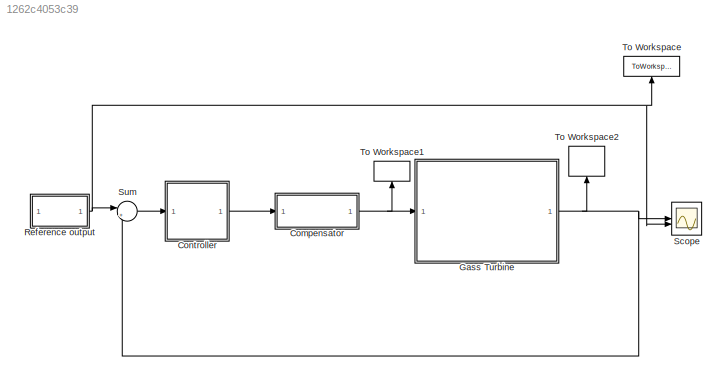
MODEL slx_1262c4053c39
KIND model
CONFIG AbsTol = auto
CONFIG EnableMultiTasking = off
CONFIG FixedStep = auto
CONFIG InitFcn = clc;\nclose all;\nclear;\ns=tf('s');\nG11=(0.806*s+0.264)/(s^2+1.15*s+0.202);\nG12=-(15*s+1.42)/(s^3+12.8*s^2+13.6*s+2.36);\nG21=(1.95*s^2+2.12*s+0.49)/(s^3+9.15*s^2+9.39*s+1.62);\nG22=(7.14*s^2+25.8*s+9.35)/(s^4+20.8*s^3+116.4*s^2+111.6*s+18.8);\nG=[G11,G12;G21,G22];\na11=[1 1.15 0.202];\na12=[1 12.8 13.6 2.36];\na21=[1 9.15 9.39 1.62];\na22=[1 20.8 116.4 111.6 18.8];\nb11=[0.806 0.264];\nb12=-[15 1.42];\nb21=[...<+381ch>
CONFIG MaxStep = auto
CONFIG MinStep = auto
CONFIG RelTol = 1e-3
CONFIG SampleTimeConstraint = Unconstrained
CONFIG SolverName = VariableStepAuto
CONFIG StartTime = 0.0
CONFIG StopFcn = close all;\nsubplot(1,2,1)\nplot(out.tout,out.y_ref.data(:,1),'-.','LineWidth',3.5)\nhold on\nplot(out.tout,out.y.data(:,1),'LineWidth',2.5)\nxlabel('time')\nylabel('y_1')\ngrid\nsubplot(1,2,2)\nplot(out.tout,out.y_ref.data(:,2),'-.','LineWidth',3.5)\nhold on\nplot(out.tout,out.y.data(:,2),'LineWidth',2.5)\nxlabel('time')\nylabel('y_2')\ngrid\nsgtitle('System response')\n\nfigure()\nsubplot(1,2,1)\nplot(out.tout,out...<+185ch>
CONFIG StopTime = 150
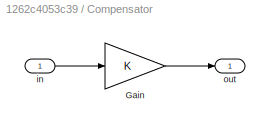
BLOCK [SubSystem] Compensator
BLOCK [Gain] Compensator/Gain
  Gain = K
  Multiplication = Matrix(K*u) (u vector)
BLOCK [Inport] Compensator/in
BLOCK [Outport] Compensator/out
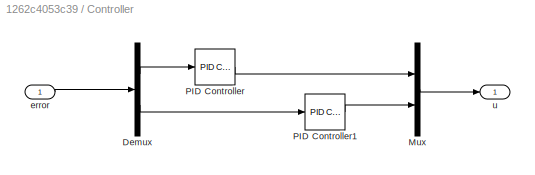
BLOCK [SubSystem] Controller
BLOCK [Demux] Controller/Demux
  Outputs = 2
BLOCK [Mux] Controller/Mux
  DisplayOption = bar
  Inputs = 2
BLOCK [Reference] Controller/PID Controller  REF=slpidlib/PID Controller
  SourceBlock = slpidlib/PID Controller
  SourceType = PID 1dof
BLOCK [Reference] Controller/PID Controller1  REF=slpidlib/PID Controller
  SourceBlock = slpidlib/PID Controller
  SourceType = PID 1dof
BLOCK [Inport] Controller/error
BLOCK [Outport] Controller/u
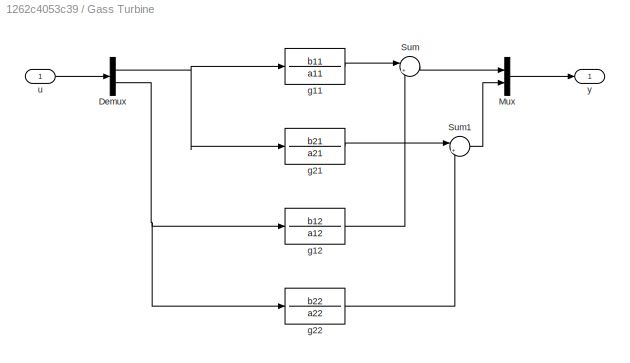
BLOCK [SubSystem] Gass Turbine
BLOCK [Demux] Gass Turbine/Demux
  Outputs = 2
BLOCK [Mux] Gass Turbine/Mux
  DisplayOption = bar
  Inputs = 2
BLOCK [Sum] Gass Turbine/Sum
  Inputs = |++
BLOCK [Sum] Gass Turbine/Sum1
  Inputs = |++
BLOCK [TransferFcn] Gass Turbine/g11
  Denominator = a11
  Numerator = b11
BLOCK [TransferFcn] Gass Turbine/g12
  Denominator = a12
  Numerator = b12
BLOCK [TransferFcn] Gass Turbine/g21
  Denominator = a21
  Numerator = b21
BLOCK [TransferFcn] Gass Turbine/g22
  Denominator = a22
  Numerator = b22
BLOCK [Inport] Gass Turbine/u
BLOCK [Outport] Gass Turbine/y
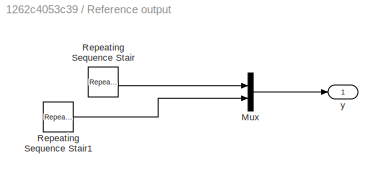
BLOCK [SubSystem] Reference output
BLOCK [Mux] Reference output/Mux
  DisplayOption = bar
  Inputs = 2
BLOCK [Reference] Reference output/Repeating Sequence Stair  REF=simulink/Sources/Repeating
Sequence
Stair
  SourceBlock = simulink/Sources/Repeating\nSequence\nStair
  SourceType = Repeating Sequence Stair
BLOCK [Reference] Reference output/Repeating Sequence Stair1  REF=simulink/Sources/Repeating
Sequence
Stair
  SourceBlock = simulink/Sources/Repeating\nSequence\nStair
  SourceType = Repeating Sequence Stair
BLOCK [Outport] Reference output/y
BLOCK [Scope] Scope
  ActiveDisplayYMaximum = 1.55201
  ActiveDisplayYMinimum = -0.55203
  Floating = off
  GraphicalSettings = {"GraphicalSettings":{"LegacySettings":true,"Style":{"AxesScalingProperties":{"ScaleAxesLimitsAtStop":false},"Style":{"AxesColor":"[0 0 0]","ChannelNames":[""],"ColorOrder":"[1 1 0.0666666666666667;0.0745098039215686 0.623529411764706 1;1 0.411764705882353 0.16078431372549;0.392156862745098 0.831372549019608 0.0745098039215686;0.717647058823529 0.274509803921569 1;0.0588235294117647 1 1;1 0.074509...<+464ch>
  MultipleDisplayCache = [{"MaxYLimMag":1.55201,"MaxYLimReal":1.55201,"MinYLimMag":0,"MinYLimReal":-0.55203,"PlotAsMagnitudePhase":false,"ShowGrid":true,"ShowLegend":false,"Title":"%<SignalLabel>","YLabel":""}]
  NumInputPorts = 2
  WasSavedAsWebScope = on
BLOCK [Sum] Sum
  Inputs = |+-
BLOCK [ToWorkspace] To Workspace
  FixptAsFi = on
  MaxDataPoints = inf
  NameLocation = right
  SampleTime = -1
  SaveFormat = Timeseries
  VariableName = y_ref
BLOCK [ToWorkspace] To Workspace1
  FixptAsFi = on
  MaxDataPoints = inf
  NameLocation = right
  SampleTime = -1
  SaveFormat = Timeseries
  VariableName = u
BLOCK [ToWorkspace] To Workspace2
  FixptAsFi = on
  MaxDataPoints = inf
  NameLocation = right
  SampleTime = -1
  SaveFormat = Timeseries
  VariableName = y
LINE Compensator/Gain:1 -> Compensator/out:1
LINE Compensator/in:1 -> Compensator/Gain:1
NET Compensator:1 -> Gass Turbine:1, To Workspace1:1
LINE Controller/Demux:1 -> Controller/PID Controller:1
LINE Controller/Demux:2 -> Controller/PID Controller1:1
LINE Controller/Mux:1 -> Controller/u:1
LINE Controller/PID Controller1:1 -> Controller/Mux:2
LINE Controller/PID Controller:1 -> Controller/Mux:1
LINE Controller/error:1 -> Controller/Demux:1
LINE Controller:1 -> Compensator:1
NET Gass Turbine/Demux:1 -> Gass Turbine/g11:1, Gass Turbine/g21:1
NET Gass Turbine/Demux:2 -> Gass Turbine/g12:1, Gass Turbine/g22:1
LINE Gass Turbine/Mux:1 -> Gass Turbine/y:1
LINE Gass Turbine/Sum1:1 -> Gass Turbine/Mux:2
LINE Gass Turbine/Sum:1 -> Gass Turbine/Mux:1
LINE Gass Turbine/g11:1 -> Gass Turbine/Sum:1
LINE Gass Turbine/g12:1 -> Gass Turbine/Sum:2
LINE Gass Turbine/g21:1 -> Gass Turbine/Sum1:1
LINE Gass Turbine/g22:1 -> Gass Turbine/Sum1:2
LINE Gass Turbine/u:1 -> Gass Turbine/Demux:1
NET Gass Turbine:1 -> Scope:1, Sum:2, To Workspace2:1
LINE Reference output/Mux:1 -> Reference output/y:1
LINE Reference output/Repeating Sequence Stair1:1 -> Reference output/Mux:2
LINE Reference output/Repeating Sequence Stair:1 -> Reference output/Mux:1
NET Reference output:1 -> Scope:2, Sum:1, To Workspace:1
LINE Sum:1 -> Controller:1
note: NET lines group one-source signal fan-out (src -> all destinations, sorted); 1:1 wires keep LINE
